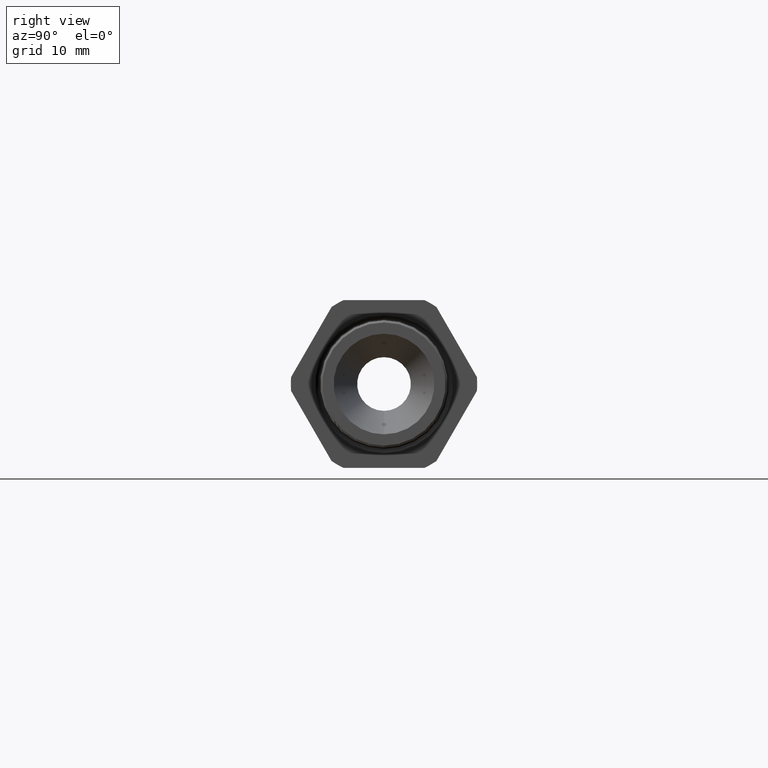
[diagram: clean part render]
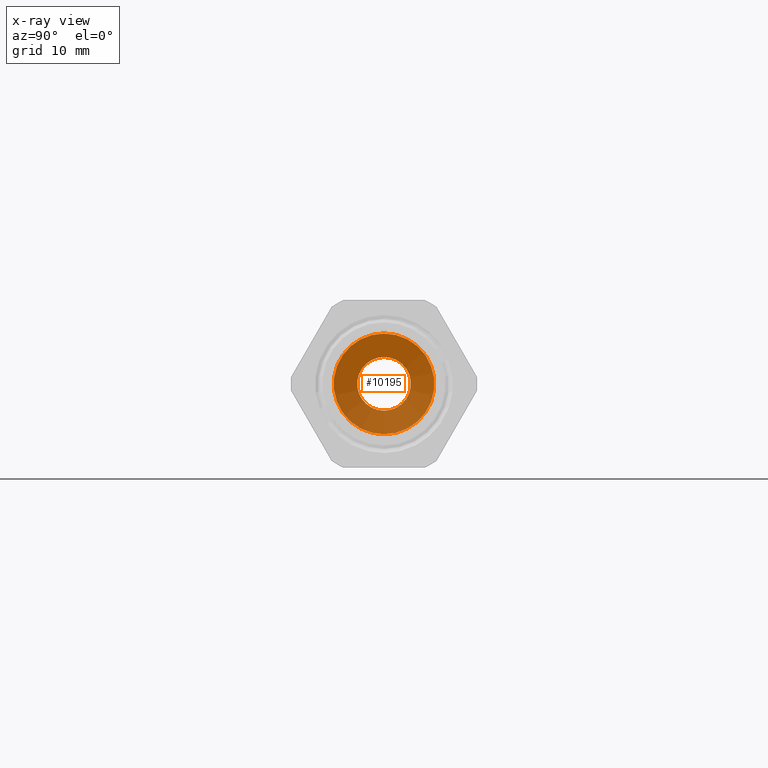
[diagram: x-ray — body ghosted, one internal face saturated and labeled with its STEP entity id]
A machine part, right view, then the same camera in x-ray: the body is ghosted and one INTERNAL B-rep face — a face not visible from any outside direction — is saturated and labeled: STEP entity #10195.
In plain terms, the highlighted planar face has unit normal (1, 0, 0).
Its self-contained STEP definition (entity closure, byte-faithful):
#255 = VERTEX_POINT ( 'NONE', #3834 ) ;
#256 = EDGE_CURVE ( 'NONE', #875, #255, #3826, .T. ) ;
#875 = VERTEX_POINT ( 'NONE', #3863 ) ;
#1246 = EDGE_LOOP ( 'NONE', ( #6547, #6769 ) ) ;
#1247 = EDGE_LOOP ( 'NONE', ( #1252, #1249 ) ) ;
#1248 = EDGE_CURVE ( 'NONE', #10265, #10056, #11609, .T. ) ;
#1249 = ORIENTED_EDGE ( 'NONE', *, *, #1248, .T. ) ;
#1252 = ORIENTED_EDGE ( 'NONE', *, *, #10272, .T. ) ;
#2088 = CARTESIAN_POINT ( 'NONE',  ( -1.022519685039370100, 0.0000000000000000000, -0.2249999999999999800 ) ) ;
#2156 = DIRECTION ( 'NONE',  ( 0.0000000000000000000, 0.0000000000000000000, -1.000000000000000000 ) ) ;
#2157 = DIRECTION ( 'NONE',  ( 1.000000000000000000, 0.0000000000000000000, 0.0000000000000000000 ) ) ;
#2158 = CARTESIAN_POINT ( 'NONE',  ( -1.022519685039370100, 0.2249999999999999800, 0.0000000000000000000 ) ) ;
#2159 = AXIS2_PLACEMENT_3D ( 'NONE', #2158, #2157, #2156 ) ;
#2160 = PLANE ( 'NONE',  #2159 ) ;
#2162 = FACE_BOUND ( 'NONE', #1246, .T. ) ;
#2163 = FACE_OUTER_BOUND ( 'NONE', #1247, .T. ) ;
#2234 = DIRECTION ( 'NONE',  ( 0.0000000000000000000, 0.0000000000000000000, -1.000000000000000000 ) ) ;
#2235 = DIRECTION ( 'NONE',  ( 1.000000000000000000, 0.0000000000000000000, 0.0000000000000000000 ) ) ;
#2236 = CARTESIAN_POINT ( 'NONE',  ( -1.022519685039370100, 0.0000000000000000000, 0.0000000000000000000 ) ) ;
#2237 = AXIS2_PLACEMENT_3D ( 'NONE', #2236, #2235, #2234 ) ;
#2238 = CIRCLE ( 'NONE', #2237, 0.2249999999999999800 ) ;
#2239 = CARTESIAN_POINT ( 'NONE',  ( -1.022519685039370100, 2.755455298081544500E-017, 0.2249999999999999800 ) ) ;
#3822 = DIRECTION ( 'NONE',  ( 0.0000000000000000000, 0.0000000000000000000, -1.000000000000000000 ) ) ;
#3823 = DIRECTION ( 'NONE',  ( 1.000000000000000000, 0.0000000000000000000, 0.0000000000000000000 ) ) ;
#3824 = CARTESIAN_POINT ( 'NONE',  ( -1.022519685039370100, 0.0000000000000000000, 0.0000000000000000000 ) ) ;
#3825 = AXIS2_PLACEMENT_3D ( 'NONE', #3824, #3823, #3822 ) ;
#3826 = CIRCLE ( 'NONE', #3825, 0.1199999999999999800 ) ;
#3834 = CARTESIAN_POINT ( 'NONE',  ( -1.022519685039370100, 0.0000000000000000000, -0.1199999999999999800 ) ) ;
#3863 = CARTESIAN_POINT ( 'NONE',  ( -1.022519685039370100, 1.469576158976823700E-017, 0.1199999999999999800 ) ) ;
#5559 = EDGE_CURVE ( 'NONE', #255, #875, #8847, .T. ) ;
#6547 = ORIENTED_EDGE ( 'NONE', *, *, #5559, .F. ) ;
#6769 = ORIENTED_EDGE ( 'NONE', *, *, #256, .F. ) ;
#8843 = DIRECTION ( 'NONE',  ( 0.0000000000000000000, 0.0000000000000000000, -1.000000000000000000 ) ) ;
#8844 = DIRECTION ( 'NONE',  ( 1.000000000000000000, 0.0000000000000000000, 0.0000000000000000000 ) ) ;
#8845 = CARTESIAN_POINT ( 'NONE',  ( -1.022519685039370100, 0.0000000000000000000, 0.0000000000000000000 ) ) ;
#8846 = AXIS2_PLACEMENT_3D ( 'NONE', #8845, #8844, #8843 ) ;
#8847 = CIRCLE ( 'NONE', #8846, 0.1199999999999999800 ) ;
#10056 = VERTEX_POINT ( 'NONE', #2088 ) ;
#10195 = ADVANCED_FACE ( 'NONE', ( #2163, #2162 ), #2160, .T. ) ;
#10265 = VERTEX_POINT ( 'NONE', #2239 ) ;
#10272 = EDGE_CURVE ( 'NONE', #10056, #10265, #2238, .T. ) ;
#11553 = CARTESIAN_POINT ( 'NONE',  ( -1.022519685039370100, 0.0000000000000000000, 0.0000000000000000000 ) ) ;
#11606 = DIRECTION ( 'NONE',  ( 0.0000000000000000000, 0.0000000000000000000, -1.000000000000000000 ) ) ;
#11607 = DIRECTION ( 'NONE',  ( 1.000000000000000000, 0.0000000000000000000, 0.0000000000000000000 ) ) ;
#11608 = AXIS2_PLACEMENT_3D ( 'NONE', #11553, #11607, #11606 ) ;
#11609 = CIRCLE ( 'NONE', #11608, 0.2249999999999999800 ) ;